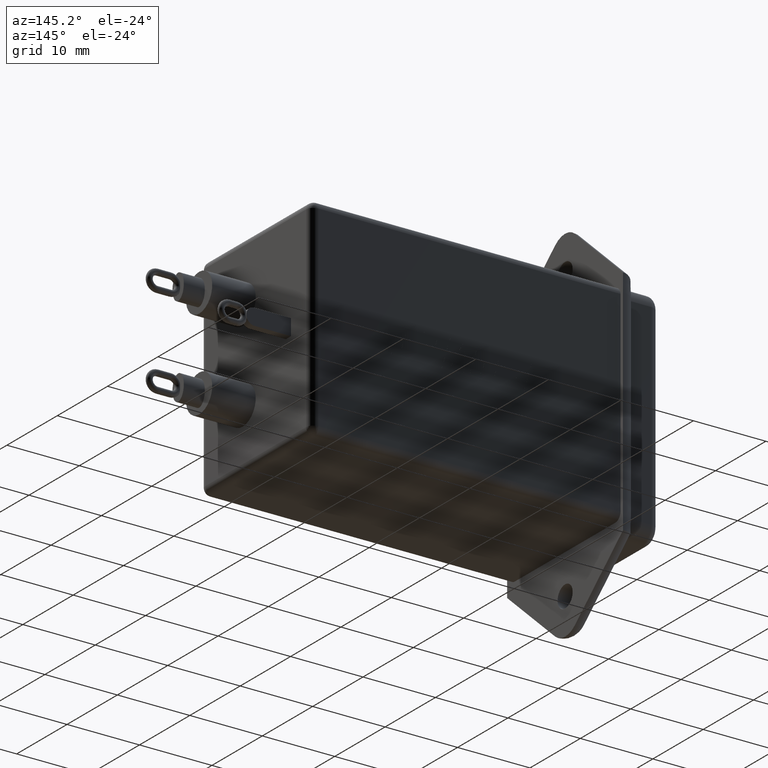
[diagram: clean part render]
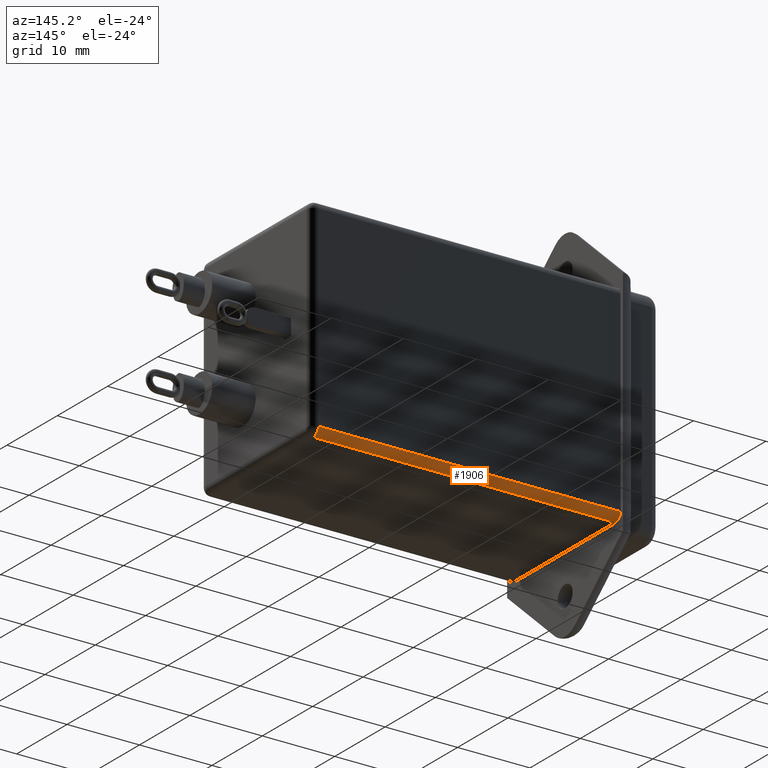
[diagram: same view with one face highlighted and labeled with its STEP entity id]
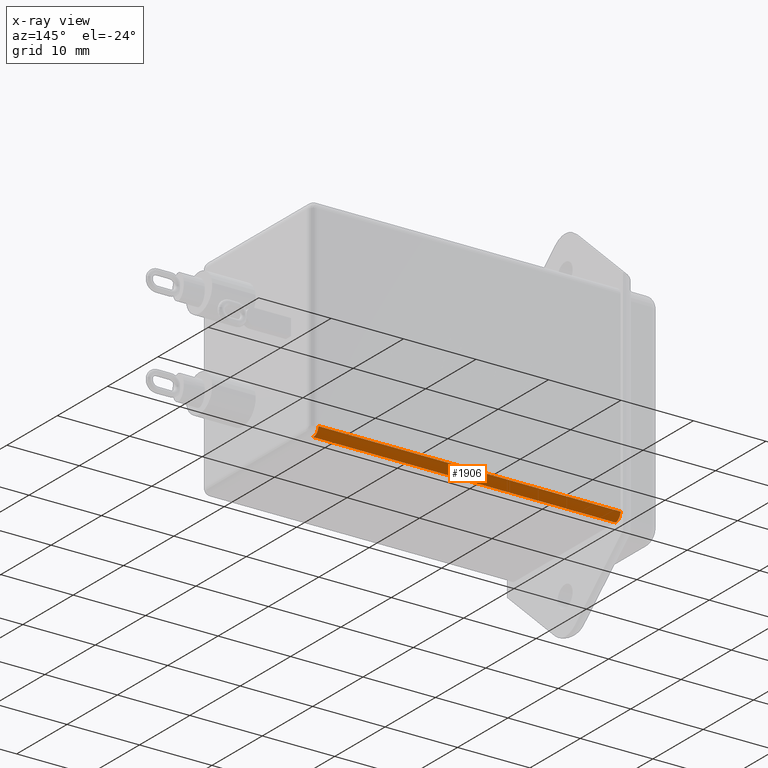
[diagram: x-ray of the same camera — body ghosted, the highlighted face saturated]
A machine part, auxiliary view. The second image highlights one B-rep face of the part: STEP entity #1906.
The next image is the same camera in x-ray: the body ghosted, the highlighted face saturated — about 0% of this face is hidden behind the body in this view.
In plain terms, the highlighted cylindrical surface (edge-blend (fillet) strip) has radius 1 mm, axis along (-1, 0, 0).
Its self-contained STEP definition (entity closure, byte-faithful):
#50 = CIRCLE ( 'NONE', #1341, 1.000000000000000000 ) ;
#269 = CARTESIAN_POINT ( 'NONE',  ( 48.70000000000000300, 8.449299689024991500E-016, 1.999999999999991300 ) ) ;
#351 = DIRECTION ( 'NONE',  ( -1.000000000000000000, 0.0000000000000000000, 0.0000000000000000000 ) ) ;
#386 = ORIENTED_EDGE ( 'NONE', *, *, #1028, .F. ) ;
#688 = LINE ( 'NONE', #4228, #3835 ) ;
#778 = VERTEX_POINT ( 'NONE', #6401 ) ;
#810 = CYLINDRICAL_SURFACE ( 'NONE', #1650, 1.000000000000000000 ) ;
#1028 = EDGE_CURVE ( 'NONE', #778, #7562, #3927, .T. ) ;
#1284 = EDGE_CURVE ( 'NONE', #5948, #778, #688, .T. ) ;
#1341 = AXIS2_PLACEMENT_3D ( 'NONE', #3868, #2668, #2081 ) ;
#1510 = DIRECTION ( 'NONE',  ( -1.000000000000000000, 0.0000000000000000000, 0.0000000000000000000 ) ) ;
#1650 = AXIS2_PLACEMENT_3D ( 'NONE', #269, #1510, #5279 ) ;
#1906 = ADVANCED_FACE ( 'NONE', ( #6374 ), #810, .T. ) ;
#2081 = DIRECTION ( 'NONE',  ( 0.0000000000000000000, 0.0000000000000000000, 1.000000000000000000 ) ) ;
#2562 = DIRECTION ( 'NONE',  ( 0.0000000000000000000, 0.0000000000000000000, -1.000000000000000000 ) ) ;
#2668 = DIRECTION ( 'NONE',  ( -1.000000000000000000, -0.0000000000000000000, 0.0000000000000000000 ) ) ;
#2783 = CARTESIAN_POINT ( 'NONE',  ( 48.70000000000000300, 1.000000000000000700, 1.999999999999991300 ) ) ;
#2973 = ORIENTED_EDGE ( 'NONE', *, *, #4832, .F. ) ;
#3290 = EDGE_CURVE ( 'NONE', #7562, #3525, #4730, .T. ) ;
#3525 = VERTEX_POINT ( 'NONE', #6815 ) ;
#3742 = DIRECTION ( 'NONE',  ( 1.000000000000000000, 0.0000000000000000000, 0.0000000000000000000 ) ) ;
#3774 = EDGE_LOOP ( 'NONE', ( #2973, #6044, #386, #4901 ) ) ;
#3835 = VECTOR ( 'NONE', #6126, 1000.000000000000000 ) ;
#3868 = CARTESIAN_POINT ( 'NONE',  ( 5.999999999999998200, 8.449299689024991500E-016, 1.999999999999991300 ) ) ;
#3927 = CIRCLE ( 'NONE', #7465, 1.000000000000000000 ) ;
#4228 = CARTESIAN_POINT ( 'NONE',  ( 48.70000000000000300, 8.673617379884035500E-016, 0.9999999999999928900 ) ) ;
#4730 = LINE ( 'NONE', #2783, #7348 ) ;
#4832 = EDGE_CURVE ( 'NONE', #3525, #5948, #50, .T. ) ;
#4901 = ORIENTED_EDGE ( 'NONE', *, *, #1284, .F. ) ;
#5279 = DIRECTION ( 'NONE',  ( 0.0000000000000000000, 0.0000000000000000000, 1.000000000000000000 ) ) ;
#5948 = VERTEX_POINT ( 'NONE', #7449 ) ;
#6044 = ORIENTED_EDGE ( 'NONE', *, *, #3290, .F. ) ;
#6126 = DIRECTION ( 'NONE',  ( 1.000000000000000000, -0.0000000000000000000, -0.0000000000000000000 ) ) ;
#6254 = CARTESIAN_POINT ( 'NONE',  ( 47.70000000000000300, 8.449299689024989500E-016, 1.999999999999993100 ) ) ;
#6374 = FACE_OUTER_BOUND ( 'NONE', #3774, .T. ) ;
#6401 = CARTESIAN_POINT ( 'NONE',  ( 47.70000000000000300, 9.632065695372813600E-016, 0.9999999999999928900 ) ) ;
#6815 = CARTESIAN_POINT ( 'NONE',  ( 6.000000000000000000, 1.000000000000000700, 1.999999999999998200 ) ) ;
#7348 = VECTOR ( 'NONE', #351, 1000.000000000000000 ) ;
#7449 = CARTESIAN_POINT ( 'NONE',  ( 6.000000000000000000, 8.673617379884035500E-016, 0.9999999999999928900 ) ) ;
#7465 = AXIS2_PLACEMENT_3D ( 'NONE', #6254, #3742, #2562 ) ;
#7562 = VERTEX_POINT ( 'NONE', #7652 ) ;
#7652 = CARTESIAN_POINT ( 'NONE',  ( 47.70000000000000300, 1.000000000000000700, 1.999999999999991800 ) ) ;